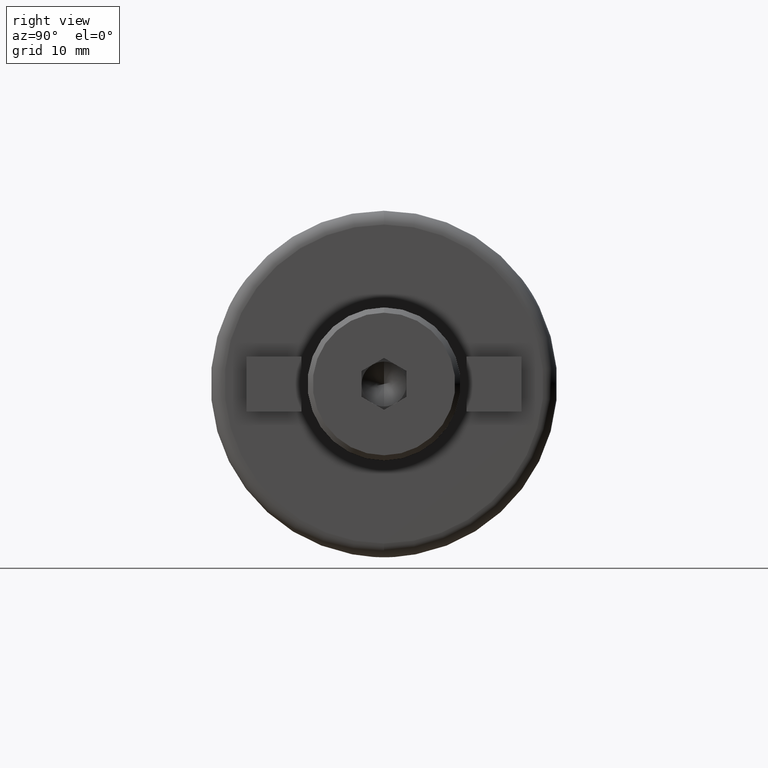
[diagram: clean part render]
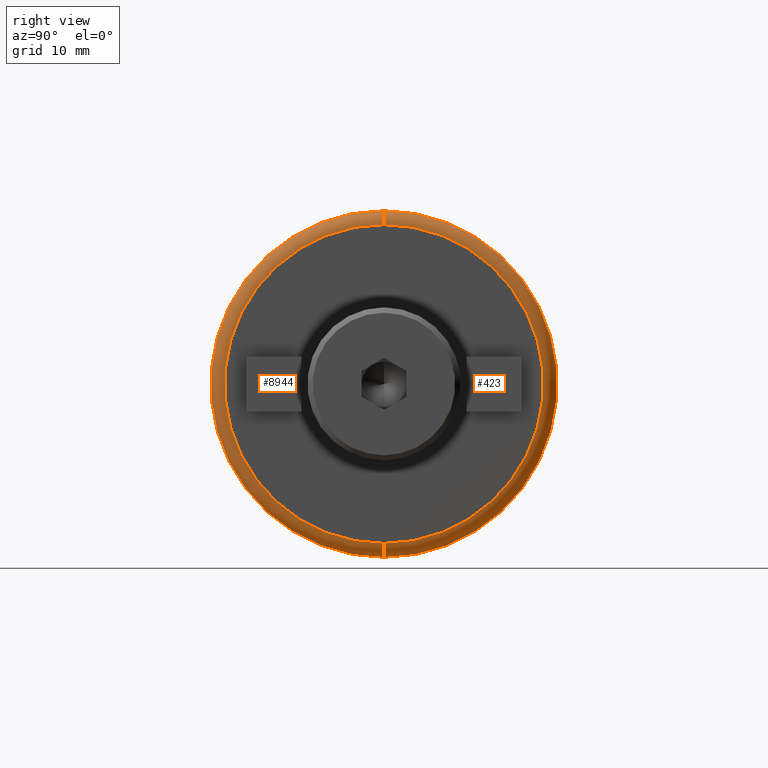
[diagram: same view with one multi-face feature highlighted, each face labeled with its STEP entity id]
A machine part, right view. The highlighted faces form ONE feature: a constant-radius fillet chain: 2 tangent blend faces with common blend radius 2 mm. The faces share edges in the B-rep.
Their STEP definitions:
[1] entity #423 (Torus):
#276 = CIRCLE ( 'NONE', #6014, 25.00000000000000000 ) ;
#423 = ADVANCED_FACE ( 'NONE', ( #6494 ), #7755, .T. ) ;
#496 = DIRECTION ( 'NONE',  ( 0.0000000000000000000, 0.0000000000000000000, 1.000000000000000000 ) ) ;
#665 = ORIENTED_EDGE ( 'NONE', *, *, #9264, .F. ) ;
#668 = ORIENTED_EDGE ( 'NONE', *, *, #7175, .T. ) ;
#1145 = DIRECTION ( 'NONE',  ( -1.000000000000000000, -0.0000000000000000000, -0.0000000000000000000 ) ) ;
#1323 = CIRCLE ( 'NONE', #5351, 22.99999999999998600 ) ;
#1832 = CARTESIAN_POINT ( 'NONE',  ( 47.89999999999999900, 0.0000000000000000000, 23.00000000000000400 ) ) ;
#1943 = CARTESIAN_POINT ( 'NONE',  ( 47.89999999999999900, 0.0000000000000000000, 0.0000000000000000000 ) ) ;
#1956 = EDGE_LOOP ( 'NONE', ( #668, #2818, #2406, #665 ) ) ;
#2049 = CARTESIAN_POINT ( 'NONE',  ( 49.89999999999999900, 2.939152317953647100E-015, -22.99999999999998600 ) ) ;
#2085 = CARTESIAN_POINT ( 'NONE',  ( 49.89999999999999900, 0.0000000000000000000, 0.0000000000000000000 ) ) ;
#2374 = EDGE_CURVE ( 'NONE', #2643, #5316, #4121, .T. ) ;
#2406 = ORIENTED_EDGE ( 'NONE', *, *, #7391, .F. ) ;
#2643 = VERTEX_POINT ( 'NONE', #2049 ) ;
#2654 = CARTESIAN_POINT ( 'NONE',  ( 49.89999999999999900, 0.0000000000000000000, 22.99999999999998600 ) ) ;
#2818 = ORIENTED_EDGE ( 'NONE', *, *, #2374, .T. ) ;
#3020 = CARTESIAN_POINT ( 'NONE',  ( 47.89999999999998400, 3.061616997868383000E-015, -25.00000000000000000 ) ) ;
#3179 = CARTESIAN_POINT ( 'NONE',  ( 47.89999999999999900, 2.816687638038912700E-015, -23.00000000000000400 ) ) ;
#3573 = VERTEX_POINT ( 'NONE', #2654 ) ;
#4121 = CIRCLE ( 'NONE', #4526, 1.999999999999998200 ) ;
#4526 = AXIS2_PLACEMENT_3D ( 'NONE', #3179, #8320, #6947 ) ;
#4768 = CARTESIAN_POINT ( 'NONE',  ( 47.89999999999998400, 0.0000000000000000000, 0.0000000000000000000 ) ) ;
#5316 = VERTEX_POINT ( 'NONE', #3020 ) ;
#5351 = AXIS2_PLACEMENT_3D ( 'NONE', #2085, #6544, #9496 ) ;
#5914 = AXIS2_PLACEMENT_3D ( 'NONE', #1832, #7668, #8376 ) ;
#6014 = AXIS2_PLACEMENT_3D ( 'NONE', #4768, #1145, #6945 ) ;
#6390 = CIRCLE ( 'NONE', #5914, 1.999999999999998200 ) ;
#6494 = FACE_OUTER_BOUND ( 'NONE', #1956, .T. ) ;
#6544 = DIRECTION ( 'NONE',  ( -1.000000000000000000, -0.0000000000000000000, -0.0000000000000000000 ) ) ;
#6945 = DIRECTION ( 'NONE',  ( 0.0000000000000000000, 0.0000000000000000000, 1.000000000000000000 ) ) ;
#6947 = DIRECTION ( 'NONE',  ( 0.0000000000000000000, -1.224646799147353500E-016, 1.000000000000000000 ) ) ;
#7143 = AXIS2_PLACEMENT_3D ( 'NONE', #1943, #9318, #496 ) ;
#7175 = EDGE_CURVE ( 'NONE', #3573, #2643, #1323, .T. ) ;
#7391 = EDGE_CURVE ( 'NONE', #9400, #5316, #276, .T. ) ;
#7632 = CARTESIAN_POINT ( 'NONE',  ( 47.89999999999998400, 0.0000000000000000000, 25.00000000000000000 ) ) ;
#7668 = DIRECTION ( 'NONE',  ( 0.0000000000000000000, -1.000000000000000000, 0.0000000000000000000 ) ) ;
#7755 = TOROIDAL_SURFACE ( 'NONE', #7143, 23.00000000000000400, 2.000000000000000000 ) ;
#8320 = DIRECTION ( 'NONE',  ( -0.0000000000000000000, 1.000000000000000000, 1.224646799147353200E-016 ) ) ;
#8376 = DIRECTION ( 'NONE',  ( 0.0000000000000000000, 0.0000000000000000000, -1.000000000000000000 ) ) ;
#9264 = EDGE_CURVE ( 'NONE', #3573, #9400, #6390, .T. ) ;
#9318 = DIRECTION ( 'NONE',  ( -1.000000000000000000, -0.0000000000000000000, -0.0000000000000000000 ) ) ;
#9400 = VERTEX_POINT ( 'NONE', #7632 ) ;
#9496 = DIRECTION ( 'NONE',  ( 0.0000000000000000000, 0.0000000000000000000, 1.000000000000000000 ) ) ;
[2] entity #8944 (Torus):
#148 = DIRECTION ( 'NONE',  ( -1.000000000000000000, -0.0000000000000000000, -0.0000000000000000000 ) ) ;
#173 = DIRECTION ( 'NONE',  ( 0.0000000000000000000, 0.0000000000000000000, 1.000000000000000000 ) ) ;
#997 = CIRCLE ( 'NONE', #8660, 22.99999999999998600 ) ;
#1535 = FACE_OUTER_BOUND ( 'NONE', #8550, .T. ) ;
#1632 = DIRECTION ( 'NONE',  ( 0.0000000000000000000, 0.0000000000000000000, 1.000000000000000000 ) ) ;
#1832 = CARTESIAN_POINT ( 'NONE',  ( 47.89999999999999900, 0.0000000000000000000, 23.00000000000000400 ) ) ;
#2049 = CARTESIAN_POINT ( 'NONE',  ( 49.89999999999999900, 2.939152317953647100E-015, -22.99999999999998600 ) ) ;
#2374 = EDGE_CURVE ( 'NONE', #2643, #5316, #4121, .T. ) ;
#2643 = VERTEX_POINT ( 'NONE', #2049 ) ;
#2654 = CARTESIAN_POINT ( 'NONE',  ( 49.89999999999999900, 0.0000000000000000000, 22.99999999999998600 ) ) ;
#2925 = EDGE_CURVE ( 'NONE', #2643, #3573, #997, .T. ) ;
#3020 = CARTESIAN_POINT ( 'NONE',  ( 47.89999999999998400, 3.061616997868383000E-015, -25.00000000000000000 ) ) ;
#3179 = CARTESIAN_POINT ( 'NONE',  ( 47.89999999999999900, 2.816687638038912700E-015, -23.00000000000000400 ) ) ;
#3573 = VERTEX_POINT ( 'NONE', #2654 ) ;
#3680 = ORIENTED_EDGE ( 'NONE', *, *, #2374, .F. ) ;
#4121 = CIRCLE ( 'NONE', #4526, 1.999999999999998200 ) ;
#4526 = AXIS2_PLACEMENT_3D ( 'NONE', #3179, #8320, #6947 ) ;
#4588 = CARTESIAN_POINT ( 'NONE',  ( 49.89999999999999900, 0.0000000000000000000, 0.0000000000000000000 ) ) ;
#4792 = CIRCLE ( 'NONE', #5109, 25.00000000000000000 ) ;
#5109 = AXIS2_PLACEMENT_3D ( 'NONE', #9013, #148, #1632 ) ;
#5208 = ORIENTED_EDGE ( 'NONE', *, *, #9264, .T. ) ;
#5316 = VERTEX_POINT ( 'NONE', #3020 ) ;
#5349 = DIRECTION ( 'NONE',  ( -1.000000000000000000, -0.0000000000000000000, -0.0000000000000000000 ) ) ;
#5914 = AXIS2_PLACEMENT_3D ( 'NONE', #1832, #7668, #8376 ) ;
#6128 = ORIENTED_EDGE ( 'NONE', *, *, #2925, .T. ) ;
#6390 = CIRCLE ( 'NONE', #5914, 1.999999999999998200 ) ;
#6947 = DIRECTION ( 'NONE',  ( 0.0000000000000000000, -1.224646799147353500E-016, 1.000000000000000000 ) ) ;
#7632 = CARTESIAN_POINT ( 'NONE',  ( 47.89999999999998400, 0.0000000000000000000, 25.00000000000000000 ) ) ;
#7668 = DIRECTION ( 'NONE',  ( 0.0000000000000000000, -1.000000000000000000, 0.0000000000000000000 ) ) ;
#7752 = CARTESIAN_POINT ( 'NONE',  ( 47.89999999999999900, 0.0000000000000000000, 0.0000000000000000000 ) ) ;
#8128 = AXIS2_PLACEMENT_3D ( 'NONE', #7752, #8500, #9202 ) ;
#8202 = EDGE_CURVE ( 'NONE', #5316, #9400, #4792, .T. ) ;
#8320 = DIRECTION ( 'NONE',  ( -0.0000000000000000000, 1.000000000000000000, 1.224646799147353200E-016 ) ) ;
#8376 = DIRECTION ( 'NONE',  ( 0.0000000000000000000, 0.0000000000000000000, -1.000000000000000000 ) ) ;
#8500 = DIRECTION ( 'NONE',  ( -1.000000000000000000, -0.0000000000000000000, -0.0000000000000000000 ) ) ;
#8550 = EDGE_LOOP ( 'NONE', ( #3680, #6128, #5208, #9575 ) ) ;
#8602 = TOROIDAL_SURFACE ( 'NONE', #8128, 23.00000000000000400, 2.000000000000000000 ) ;
#8660 = AXIS2_PLACEMENT_3D ( 'NONE', #4588, #5349, #173 ) ;
#8944 = ADVANCED_FACE ( 'NONE', ( #1535 ), #8602, .T. ) ;
#9013 = CARTESIAN_POINT ( 'NONE',  ( 47.89999999999998400, 0.0000000000000000000, 0.0000000000000000000 ) ) ;
#9202 = DIRECTION ( 'NONE',  ( 0.0000000000000000000, 0.0000000000000000000, 1.000000000000000000 ) ) ;
#9264 = EDGE_CURVE ( 'NONE', #3573, #9400, #6390, .T. ) ;
#9400 = VERTEX_POINT ( 'NONE', #7632 ) ;
#9575 = ORIENTED_EDGE ( 'NONE', *, *, #8202, .F. ) ;